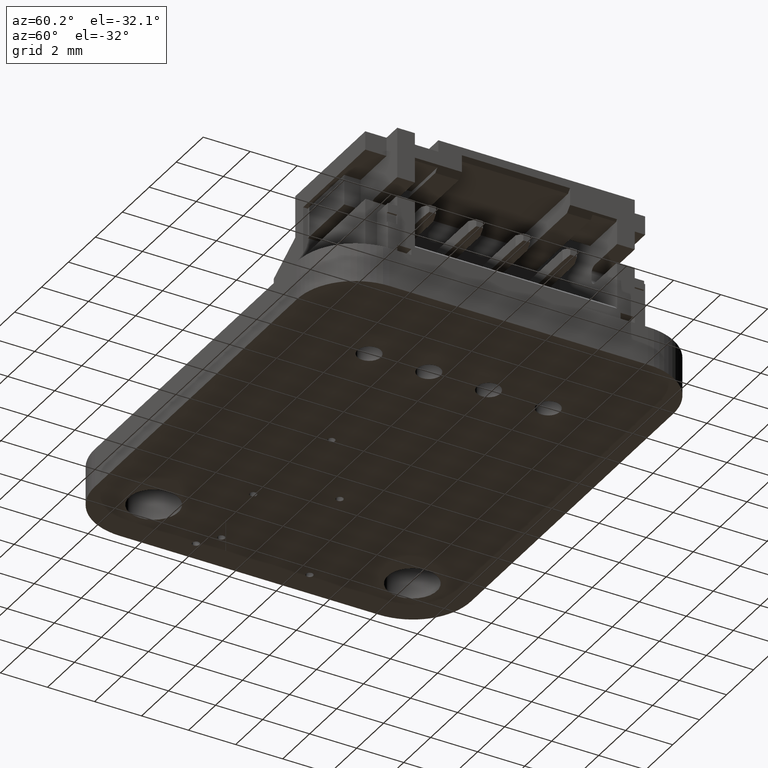
[diagram: clean part render]
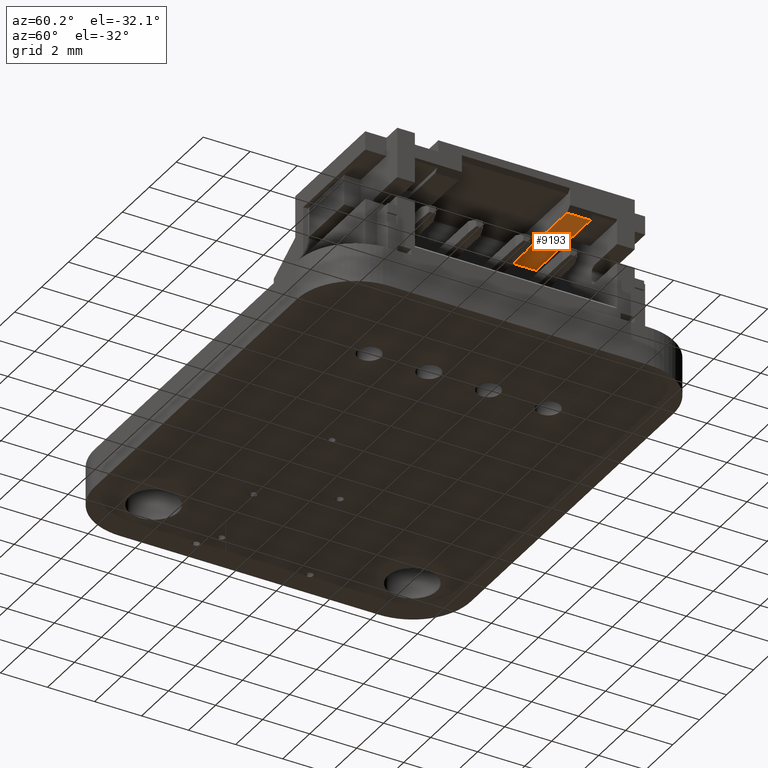
[diagram: same view with one face highlighted and labeled with its STEP entity id]
A machine part, auxiliary view. The second image highlights one B-rep face of the part: STEP entity #9193.
In plain terms, the highlighted planar face has unit normal (-0, -0, 1).
Its self-contained STEP definition (entity closure, byte-faithful):
#7384 = VERTEX_POINT('',#7385);
#7385 = CARTESIAN_POINT('',(5.299999999999,4.2,-4.25));
#7391 = EDGE_CURVE('',#7384,#7392,#7394,.T.);
#7392 = VERTEX_POINT('',#7393);
#7393 = CARTESIAN_POINT('',(4.299999999999,4.2,-4.25));
#7394 = LINE('',#7395,#7396);
#7395 = CARTESIAN_POINT('',(1.699999999999,4.2,-4.25));
#7396 = VECTOR('',#7397,1.);
#7397 = DIRECTION('',(-1.,-8.086446079014E-29,-7.281636885445E-15));
#9193 = ADVANCED_FACE('',(#9194),#9219,.F.);
#9194 = FACE_BOUND('',#9195,.T.);
#9195 = EDGE_LOOP('',(#9196,#9206,#9212,#9213));
#9196 = ORIENTED_EDGE('',*,*,#9197,.F.);
#9197 = EDGE_CURVE('',#9198,#9200,#9202,.T.);
#9198 = VERTEX_POINT('',#9199);
#9199 = CARTESIAN_POINT('',(4.299999999999,4.2,-0.23));
#9200 = VERTEX_POINT('',#9201);
#9201 = CARTESIAN_POINT('',(5.3,4.2,-0.23));
#9202 = LINE('',#9203,#9204);
#9203 = CARTESIAN_POINT('',(1.699999999999,4.2,-0.23));
#9204 = VECTOR('',#9205,1.);
#9205 = DIRECTION('',(1.,5.374889246201E-17,7.391429510507E-15));
#9206 = ORIENTED_EDGE('',*,*,#9207,.T.);
#9207 = EDGE_CURVE('',#9198,#7392,#9208,.T.);
#9208 = LINE('',#9209,#9210);
#9209 = CARTESIAN_POINT('',(4.299999999999,4.2,-5.898059818321E-14));
#9210 = VECTOR('',#9211,1.);
#9211 = DIRECTION('',(-0.,-1.067853519815E-14,-1.));
#9212 = ORIENTED_EDGE('',*,*,#7391,.F.);
#9213 = ORIENTED_EDGE('',*,*,#9214,.T.);
#9214 = EDGE_CURVE('',#7384,#9200,#9215,.T.);
#9215 = LINE('',#9216,#9217);
#9216 = CARTESIAN_POINT('',(5.299999999999,4.2,-5.898059818321E-14));
#9217 = VECTOR('',#9218,1.);
#9218 = DIRECTION('',(0.,1.067853519815E-14,1.));
#9219 = PLANE('',#9220);
#9220 = AXIS2_PLACEMENT_3D('',#9221,#9222,#9223);
#9221 = CARTESIAN_POINT('',(1.699999999999,4.2,-5.898059818321E-14));
#9222 = DIRECTION('',(-5.374889246193E-17,1.,-1.067853519815E-14));
#9223 = DIRECTION('',(0.,1.067853519815E-14,1.));